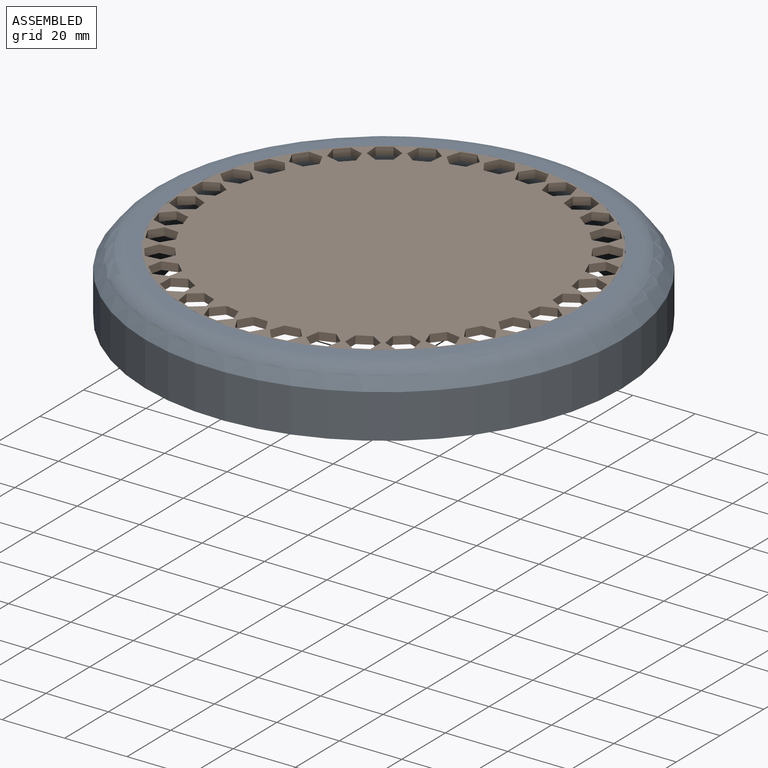
[diagram: assembled view]
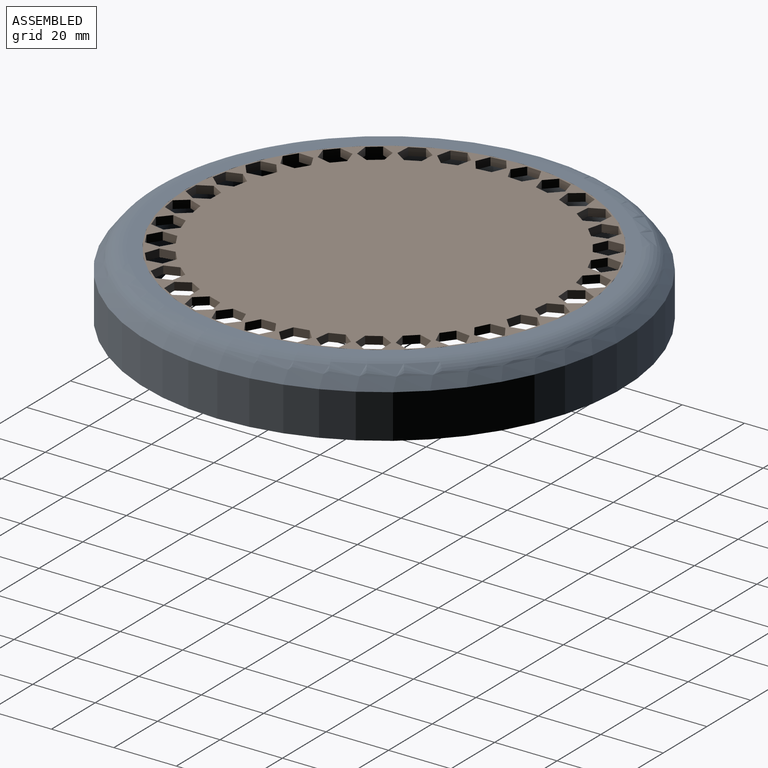
[diagram: assembled view, second angle]
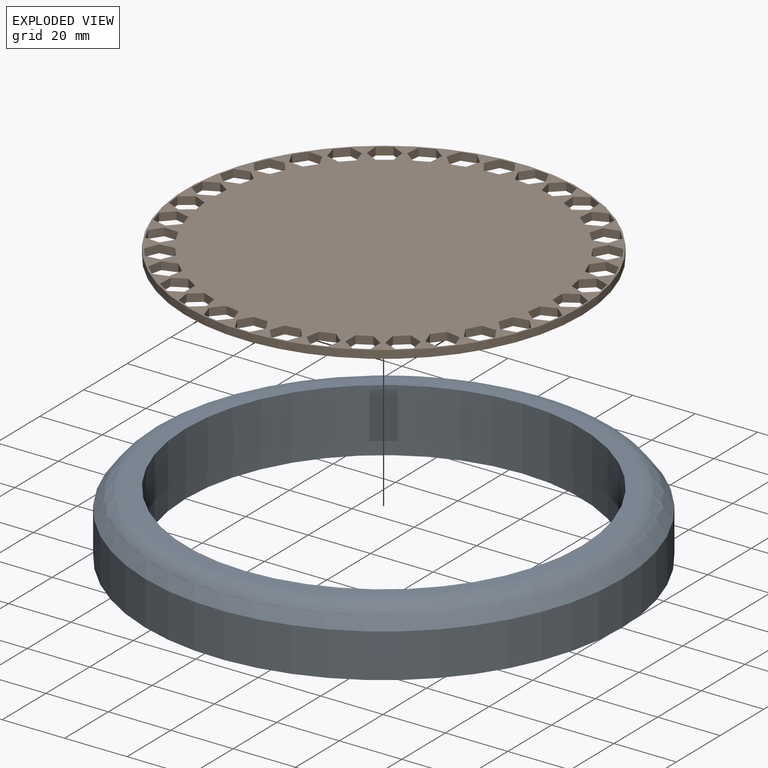
[diagram: exploded view]
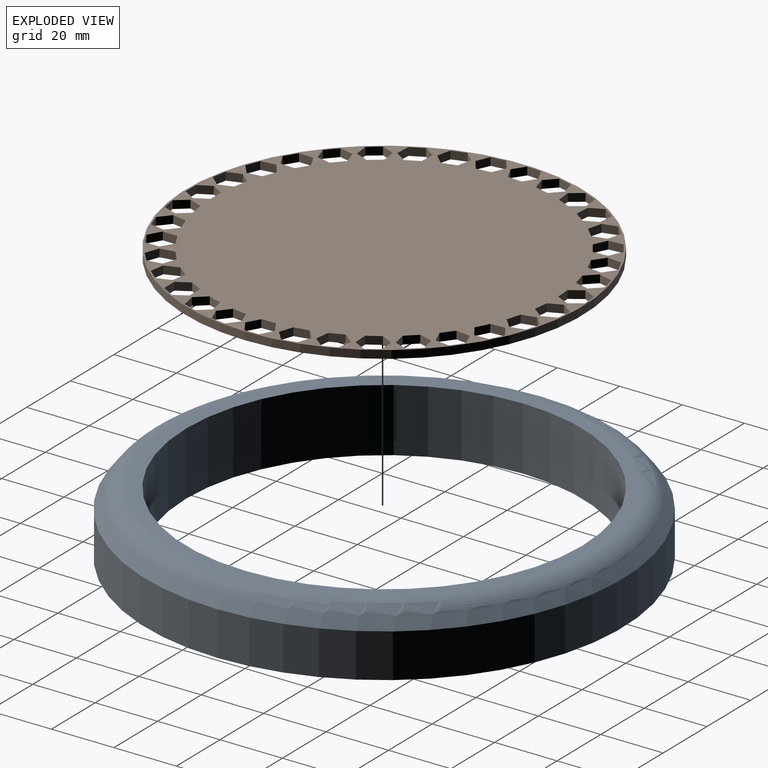
[diagram: exploded view, second angle]
ASSEMBLY  parts=2 mates=3
PART A: 6 faces, bbox 163.1x163.1x20.3 mm
  f0: plane 152.63x152.63mm, normal (0,0,-1), area 5629.1mm2, adj f1,f4
  f1: cylinder r=76.32mm len=152.63mm, axis (0,0,1), area 6754mm2, adj f0,f2
  f2: cone r=76.32mm half-angle=37.9deg, axis (0,0,-1), area 1966.7mm2, adj f1,f5
  f3: plane 135.48x135.48mm, normal (0,0,1), area 1748mm2, adj f4,f5
  f4: cylinder r=63.5mm len=127mm, axis (0,0,1), area 8107.3mm2, adj f0,f3
  f5: torus R=67.74mm, axis (0,0,-1), area 3091.4mm2, adj f2,f3
PART B: 213 faces, bbox 127x127x2.5 mm
  f0: cylinder r=63.5mm len=127mm, axis (0,0,-1), area 1013.4mm2, adj f1,f2
  f1: plane 127x127mm, normal (0,0,1), area 10668.9mm2, adj f0,f3,f4,f5,f6,f7,f8,f9
  f2: plane 127x127mm, normal (0,0,-1), area 10668.9mm2, adj f0,f3,f4,f5,f6,f7,f8,f9
  f3: plane 4.27x2.54mm, normal (-0.91,0.41,0), area 11.9mm2, adj f1,f2,f4,f8
  f4: plane 3.81x2.73mm, normal (-0.81,-0.58,0), area 11.9mm2, adj f1,f2,f3,f5
  f5: plane 4.67x2.54mm, normal (0.1,-1,0), area 11.9mm2, adj f1,f2,f4,f6
  f6: plane 4.27x2.54mm, normal (0.91,-0.41,0), area 11.9mm2, adj f1,f2,f5,f7
  f7: plane 3.81x2.73mm, normal (0.81,0.58,0), area 11.9mm2, adj f1,f2,f6,f8
  f8: plane 4.67x2.54mm, normal (-0.1,1,0), area 11.9mm2, adj f1,f2,f3,f7
  f9: plane 3.32x3.31mm, normal (-0.71,0.71,0), area 11.9mm2, adj f1,f2,f10,f14
  f10: plane 4.53x2.54mm, normal (-0.97,-0.26,0), area 11.9mm2, adj f1,f2,f9,f11
  f11: plane 4.53x2.54mm, normal (-0.26,-0.97,0), area 11.9mm2, adj f1,f2,f10,f12
  f12: plane 3.32x3.31mm, normal (0.71,-0.71,0), area 11.9mm2, adj f1,f2,f11,f13
  f13: plane 4.53x2.54mm, normal (0.97,0.26,0), area 11.9mm2, adj f1,f2,f12,f14
  f14: plane 4.53x2.54mm, normal (0.26,0.97,0), area 11.9mm2, adj f1,f2,f9,f13
  f15: plane 3.86x2.67mm, normal (-0.82,0.57,0), area 11.9mm2, adj f1,f2,f16,f20
  f16: plane 4.24x2.54mm, normal (-0.9,-0.43,0), area 11.9mm2, adj f1,f2,f15,f17
  f17: plane 4.67x2.54mm, normal (-0.08,-1,0), area 11.9mm2, adj f1,f2,f16,f18
  f18: plane 3.86x2.67mm, normal (0.82,-0.57,0), area 11.9mm2, adj f1,f2,f17,f19
  f19: plane 4.24x2.54mm, normal (0.9,0.43,0), area 11.9mm2, adj f1,f2,f18,f20
  f20: plane 4.67x2.54mm, normal (0.08,1,0), area 11.9mm2, adj f1,f2,f15,f19
  f21: plane 4.55x2.54mm, normal (-0.97,0.24,0), area 11.9mm2, adj f1,f2,f22,f26
  f22: plane 3.37x3.26mm, normal (-0.7,-0.72,0), area 11.9mm2, adj f1,f2,f21,f23
  f23: plane 4.51x2.54mm, normal (0.27,-0.96,0), area 11.9mm2, adj f1,f2,f22,f24
  f24: plane 4.55x2.54mm, normal (0.97,-0.24,0), area 11.9mm2, adj f1,f2,f23,f25
  f25: plane 3.37x3.26mm, normal (0.7,0.72,0), area 11.9mm2, adj f1,f2,f24,f26
  f26: plane 4.51x2.54mm, normal (-0.27,0.96,0), area 11.9mm2, adj f1,f2,f21,f25
  f27: plane 4.68x2.54mm, normal (-1,0.07,0), area 11.9mm2, adj f1,f2,f28,f32
  f28: plane 3.9x2.61mm, normal (-0.56,-0.83,0), area 11.9mm2, adj f1,f2,f27,f29
  f29: plane 4.21x2.54mm, normal (0.44,-0.9,0), area 11.9mm2, adj f1,f2,f28,f30
  f30: plane 4.68x2.54mm, normal (1,-0.07,0), area 11.9mm2, adj f1,f2,f29,f31
  f31: plane 3.9x2.61mm, normal (0.56,0.83,0), area 11.9mm2, adj f1,f2,f30,f32
  f32: plane 4.21x2.54mm, normal (-0.44,0.9,0), area 11.9mm2, adj f1,f2,f27,f31
  f33: plane 4.66x2.54mm, normal (-0.99,-0.11,0), area 11.9mm2, adj f1,f2,f34,f38
  f34: plane 4.3x2.54mm, normal (-0.4,-0.92,0), area 11.9mm2, adj f1,f2,f33,f35
  f35: plane 3.77x2.79mm, normal (0.59,-0.8,0), area 11.9mm2, adj f1,f2,f34,f36
  f36: plane 4.66x2.54mm, normal (0.99,0.11,0), area 11.9mm2, adj f1,f2,f35,f37
  f37: plane 4.3x2.54mm, normal (0.4,0.92,0), area 11.9mm2, adj f1,f2,f36,f38
  f38: plane 3.77x2.79mm, normal (-0.59,0.8,0), area 11.9mm2, adj f1,f2,f33,f37
  f39: plane 4.49x2.54mm, normal (-0.96,-0.29,0), area 11.9mm2, adj f1,f2,f40,f44
  f40: plane 4.56x2.54mm, normal (-0.23,-0.97,0), area 11.9mm2, adj f1,f2,f39,f41
  f41: plane 3.42x3.21mm, normal (0.73,-0.68,0), area 11.9mm2, adj f1,f2,f40,f42
  f42: plane 4.49x2.54mm, normal (0.96,0.29,0), area 11.9mm2, adj f1,f2,f41,f43
  f43: plane 4.56x2.54mm, normal (0.23,0.97,0), area 11.9mm2, adj f1,f2,f42,f44
  f44: plane 3.42x3.21mm, normal (-0.73,0.68,0), area 11.9mm2, adj f1,f2,f39,f43
  f45: plane 3.46x3.16mm, normal (-0.67,-0.74,0), area 11.9mm2, adj f1,f2,f46,f50
  f46: plane 4.47x2.54mm, normal (0.3,-0.95,0), area 11.9mm2, adj f1,f2,f45,f47
  f47: plane 4.58x2.54mm, normal (0.98,-0.21,0), area 11.9mm2, adj f1,f2,f46,f48
  f48: plane 3.46x3.16mm, normal (0.67,0.74,0), area 11.9mm2, adj f1,f2,f47,f49
  f49: plane 4.47x2.54mm, normal (-0.3,0.95,0), area 11.9mm2, adj f1,f2,f48,f50
  f50: plane 4.58x2.54mm, normal (-0.98,0.21,0), area 11.9mm2, adj f1,f2,f45,f49
  f51: plane 3.97x2.54mm, normal (-0.53,-0.85,0), area 11.9mm2, adj f1,f2,f52,f56
  f52: plane 4.14x2.54mm, normal (0.47,-0.88,0), area 11.9mm2, adj f1,f2,f51,f53
  f53: plane 4.69x2.54mm, normal (1,-0.04,0), area 11.9mm2, adj f1,f2,f52,f54
  f54: plane 3.97x2.54mm, normal (0.53,0.85,0), area 11.9mm2, adj f1,f2,f53,f55
  f55: plane 4.14x2.54mm, normal (-0.47,0.88,0), area 11.9mm2, adj f1,f2,f54,f56
  f56: plane 4.69x2.54mm, normal (-1,0.04,0), area 11.9mm2, adj f1,f2,f51,f55
  f57: plane 3.73x2.85mm, normal (-0.79,-0.61,0), area 11.9mm2, adj f1,f2,f58,f62
  f58: plane 4.65x2.54mm, normal (0.13,-0.99,0), area 11.9mm2, adj f1,f2,f57,f59
  f59: plane 4.33x2.54mm, normal (0.92,-0.38,0), area 11.9mm2, adj f1,f2,f58,f60
  f60: plane 3.73x2.85mm, normal (0.79,0.61,0), area 11.9mm2, adj f1,f2,f59,f61
  f61: plane 4.65x2.54mm, normal (-0.13,0.99,0), area 11.9mm2, adj f1,f2,f60,f62
  f62: plane 4.33x2.54mm, normal (-0.92,0.38,0), area 11.9mm2, adj f1,f2,f57,f61
  f63: plane 4.17x2.54mm, normal (-0.89,-0.46,0), area 11.9mm2, adj f1,f2,f64,f68
  f64: plane 4.68x2.54mm, normal (-0.05,-1,0), area 11.9mm2, adj f1,f2,f63,f65
  f65: plane 3.94x2.55mm, normal (0.84,-0.54,0), area 11.9mm2, adj f1,f2,f64,f66
  f66: plane 4.17x2.54mm, normal (0.89,0.46,0), area 11.9mm2, adj f1,f2,f65,f67
  f67: plane 4.68x2.54mm, normal (0.05,1,0), area 11.9mm2, adj f1,f2,f66,f68
  f68: plane 3.94x2.55mm, normal (-0.84,0.54,0), area 11.9mm2, adj f1,f2,f63,f67
  f69: plane 4.35x2.54mm, normal (-0.37,-0.93,0), area 11.9mm2, adj f1,f2,f70,f74
  f70: plane 3.68x2.9mm, normal (0.62,-0.79,0), area 11.9mm2, adj f1,f2,f69,f71
  f71: plane 4.64x2.54mm, normal (0.99,0.14,0), area 11.9mm2, adj f1,f2,f70,f72
  f72: plane 4.35x2.54mm, normal (0.37,0.93,0), area 11.9mm2, adj f1,f2,f71,f73
  f73: plane 3.68x2.9mm, normal (-0.62,0.79,0), area 11.9mm2, adj f1,f2,f72,f74
  f74: plane 4.64x2.54mm, normal (-0.99,-0.14,0), area 11.9mm2, adj f1,f2,f69,f73
  f75: plane 4.59x2.54mm, normal (-0.2,-0.98,0), area 11.9mm2, adj f1,f2,f76,f80
  f76: plane 3.51x3.11mm, normal (0.75,-0.66,0), area 11.9mm2, adj f1,f2,f75,f77
  f77: plane 4.45x2.54mm, normal (0.95,0.32,0), area 11.9mm2, adj f1,f2,f76,f78
  f78: plane 4.59x2.54mm, normal (0.2,0.98,0), area 11.9mm2, adj f1,f2,f77,f79
  f79: plane 3.51x3.11mm, normal (-0.75,0.66,0), area 11.9mm2, adj f1,f2,f78,f80
  f80: plane 4.45x2.54mm, normal (-0.95,-0.32,0), area 11.9mm2, adj f1,f2,f75,f79
  f81: plane 4.69x2.54mm, normal (-0.02,-1,0), area 11.9mm2, adj f1,f2,f82,f86
  f82: plane 4.01x2.54mm, normal (0.86,-0.52,0), area 11.9mm2, adj f1,f2,f81,f83
  f83: plane 4.11x2.54mm, normal (0.88,0.48,0), area 11.9mm2, adj f1,f2,f82,f84
  f84: plane 4.69x2.54mm, normal (0.02,1,0), area 11.9mm2, adj f1,f2,f83,f85
  f85: plane 4.01x2.54mm, normal (-0.86,0.52,0), area 11.9mm2, adj f1,f2,f84,f86
  f86: plane 4.11x2.54mm, normal (-0.88,-0.48,0), area 11.9mm2, adj f1,f2,f81,f85
  f87: plane 4.63x2.54mm, normal (0.16,-0.99,0), area 11.9mm2, adj f1,f2,f88,f92
  f88: plane 4.38x2.54mm, normal (0.93,-0.36,0), area 11.9mm2, adj f1,f2,f87,f89
  f89: plane 3.64x2.96mm, normal (0.78,0.63,0), area 11.9mm2, adj f1,f2,f88,f90
  f90: plane 4.63x2.54mm, normal (-0.16,0.99,0), area 11.9mm2, adj f1,f2,f89,f91
  f91: plane 4.38x2.54mm, normal (-0.93,0.36,0), area 11.9mm2, adj f1,f2,f90,f92
  f92: plane 3.64x2.96mm, normal (-0.78,-0.63,0), area 11.9mm2, adj f1,f2,f87,f91
  f93: plane 4.42x2.54mm, normal (0.33,-0.94,0), area 11.9mm2, adj f1,f2,f94,f98
  f94: plane 4.61x2.54mm, normal (0.98,-0.18,0), area 11.9mm2, adj f1,f2,f93,f95
  f95: plane 3.56x3.05mm, normal (0.65,0.76,0), area 11.9mm2, adj f1,f2,f94,f96
  f96: plane 4.42x2.54mm, normal (-0.33,0.94,0), area 11.9mm2, adj f1,f2,f95,f97
  f97: plane 4.61x2.54mm, normal (-0.98,0.18,0), area 11.9mm2, adj f1,f2,f96,f98
  f98: plane 3.56x3.05mm, normal (-0.65,-0.76,0), area 11.9mm2, adj f1,f2,f93,f97
  f99: plane 4.07x2.54mm, normal (0.49,-0.87,0), area 11.9mm2, adj f1,f2,f100,f104
  f100: plane 4.69x2.54mm, normal (1,-0.01,0), area 11.9mm2, adj f1,f2,f99,f101
  f101: plane 4.05x2.54mm, normal (0.51,0.86,0), area 11.9mm2, adj f1,f2,f100,f102
  f102: plane 4.07x2.54mm, normal (-0.49,0.87,0), area 11.9mm2, adj f1,f2,f101,f103
  f103: plane 4.69x2.54mm, normal (-1,0.01,0), area 11.9mm2, adj f1,f2,f102,f104
  f104: plane 4.05x2.54mm, normal (-0.51,-0.86,0), area 11.9mm2, adj f1,f2,f99,f103
  f105: plane 3.6x3mm, normal (0.77,-0.64,0), area 11.9mm2, adj f1,f2,f106,f110
  f106: plane 4.4x2.54mm, normal (0.94,0.35,0), area 11.9mm2, adj f1,f2,f105,f107
  f107: plane 4.62x2.54mm, normal (0.17,0.99,0), area 11.9mm2, adj f1,f2,f106,f108
  f108: plane 3.6x3mm, normal (-0.77,0.64,0), area 11.9mm2, adj f1,f2,f107,f109
  f109: plane 4.4x2.54mm, normal (-0.94,-0.35,0), area 11.9mm2, adj f1,f2,f108,f110
  f110: plane 4.62x2.54mm, normal (-0.17,-0.99,0), area 11.9mm2, adj f1,f2,f105,f109
  f111: plane 3.6x3.01mm, normal (0.64,-0.77,0), area 11.9mm2, adj f1,f2,f112,f116
  f112: plane 4.62x2.54mm, normal (0.99,0.17,0), area 11.9mm2, adj f1,f2,f111,f113
  f113: plane 4.4x2.54mm, normal (0.34,0.94,0), area 11.9mm2, adj f1,f2,f112,f114
  f114: plane 3.6x3.01mm, normal (-0.64,0.77,0), area 11.9mm2, adj f1,f2,f113,f115
  f115: plane 4.62x2.54mm, normal (-0.99,-0.17,0), area 11.9mm2, adj f1,f2,f114,f116
  f116: plane 4.4x2.54mm, normal (-0.34,-0.94,0), area 11.9mm2, adj f1,f2,f111,f115
  f117: plane 3.85x2.68mm, normal (-0.57,0.82,0), area 11.9mm2, adj f1,f2,f118,f122
  f118: plane 4.67x2.54mm, normal (-1,-0.08,0), area 11.9mm2, adj f1,f2,f117,f119
  f119: plane 4.24x2.54mm, normal (-0.43,-0.9,0), area 11.9mm2, adj f1,f2,f118,f120
  f120: plane 3.85x2.68mm, normal (0.57,-0.82,0), area 11.9mm2, adj f1,f2,f119,f121
  f121: plane 4.67x2.54mm, normal (1,0.08,0), area 11.9mm2, adj f1,f2,f120,f122
  f122: plane 4.24x2.54mm, normal (0.43,0.9,0), area 11.9mm2, adj f1,f2,f117,f121
  f123: plane 4.27x2.54mm, normal (-0.41,0.91,0), area 11.9mm2, adj f1,f2,f124,f128
  f124: plane 4.67x2.54mm, normal (-1,0.1,0), area 11.9mm2, adj f1,f2,f123,f125
  f125: plane 3.82x2.72mm, normal (-0.58,-0.81,0), area 11.9mm2, adj f1,f2,f124,f126
  f126: plane 4.27x2.54mm, normal (0.41,-0.91,0), area 11.9mm2, adj f1,f2,f125,f127
  f127: plane 4.67x2.54mm, normal (1,-0.1,0), area 11.9mm2, adj f1,f2,f126,f128
  f128: plane 3.82x2.72mm, normal (0.58,0.81,0), area 11.9mm2, adj f1,f2,f123,f127
  f129: plane 4.54x2.54mm, normal (-0.25,0.97,0), area 11.9mm2, adj f1,f2,f130,f134
  f130: plane 4.51x2.54mm, normal (-0.96,0.27,0), area 11.9mm2, adj f1,f2,f129,f131
  f131: plane 3.36x3.27mm, normal (-0.72,-0.7,0), area 11.9mm2, adj f1,f2,f130,f132
  f132: plane 4.54x2.54mm, normal (0.25,-0.97,0), area 11.9mm2, adj f1,f2,f131,f133
  f133: plane 4.51x2.54mm, normal (0.96,-0.27,0), area 11.9mm2, adj f1,f2,f132,f134
  f134: plane 3.36x3.27mm, normal (0.72,0.7,0), area 11.9mm2, adj f1,f2,f129,f133
  f135: plane 4.68x2.54mm, normal (-0.07,1,0), area 11.9mm2, adj f1,f2,f136,f140
  f136: plane 4.21x2.54mm, normal (-0.9,0.44,0), area 11.9mm2, adj f1,f2,f135,f137
  f137: plane 3.89x2.62mm, normal (-0.83,-0.56,0), area 11.9mm2, adj f1,f2,f136,f138
  f138: plane 4.68x2.54mm, normal (0.07,-1,0), area 11.9mm2, adj f1,f2,f137,f139
  f139: plane 4.21x2.54mm, normal (0.9,-0.44,0), area 11.9mm2, adj f1,f2,f138,f140
  f140: plane 3.89x2.62mm, normal (0.83,0.56,0), area 11.9mm2, adj f1,f2,f135,f139
  f141: plane 4.66x2.54mm, normal (0.11,0.99,0), area 11.9mm2, adj f1,f2,f142,f146
  f142: plane 3.78x2.78mm, normal (-0.81,0.59,0), area 11.9mm2, adj f1,f2,f141,f143
  f143: plane 4.29x2.54mm, normal (-0.92,-0.4,0), area 11.9mm2, adj f1,f2,f142,f144
  f144: plane 4.66x2.54mm, normal (-0.11,-0.99,0), area 11.9mm2, adj f1,f2,f143,f145
  f145: plane 3.78x2.78mm, normal (0.81,-0.59,0), area 11.9mm2, adj f1,f2,f144,f146
  f146: plane 4.29x2.54mm, normal (0.92,0.4,0), area 11.9mm2, adj f1,f2,f141,f145
  f147: plane 4.49x2.54mm, normal (0.29,0.96,0), area 11.9mm2, adj f1,f2,f148,f152
  f148: plane 3.41x3.22mm, normal (-0.69,0.73,0), area 11.9mm2, adj f1,f2,f147,f149
  f149: plane 4.56x2.54mm, normal (-0.97,-0.23,0), area 11.9mm2, adj f1,f2,f148,f150
  f150: plane 4.49x2.54mm, normal (-0.29,-0.96,0), area 11.9mm2, adj f1,f2,f149,f151
  f151: plane 3.41x3.22mm, normal (0.69,-0.73,0), area 11.9mm2, adj f1,f2,f150,f152
  f152: plane 4.56x2.54mm, normal (0.97,0.23,0), area 11.9mm2, adj f1,f2,f147,f151
  f153: plane 4.18x2.54mm, normal (0.45,0.89,0), area 11.9mm2, adj f1,f2,f154,f158
  f154: plane 3.93x2.56mm, normal (-0.55,0.84,0), area 11.9mm2, adj f1,f2,f153,f155
  f155: plane 4.68x2.54mm, normal (-1,-0.05,0), area 11.9mm2, adj f1,f2,f154,f156
  f156: plane 4.18x2.54mm, normal (-0.45,-0.89,0), area 11.9mm2, adj f1,f2,f155,f157
  f157: plane 3.93x2.56mm, normal (0.55,-0.84,0), area 11.9mm2, adj f1,f2,f156,f158
  f158: plane 4.68x2.54mm, normal (1,0.05,0), area 11.9mm2, adj f1,f2,f153,f157
  f159: plane 3.73x2.84mm, normal (0.6,0.8,0), area 11.9mm2, adj f1,f2,f160,f164
  f160: plane 4.32x2.54mm, normal (-0.39,0.92,0), area 11.9mm2, adj f1,f2,f159,f161
  f161: plane 4.65x2.54mm, normal (-0.99,0.13,0), area 11.9mm2, adj f1,f2,f160,f162
  f162: plane 3.73x2.84mm, normal (-0.6,-0.8,0), area 11.9mm2, adj f1,f2,f161,f163
  f163: plane 4.32x2.54mm, normal (0.39,-0.92,0), area 11.9mm2, adj f1,f2,f162,f164
  f164: plane 4.65x2.54mm, normal (0.99,-0.13,0), area 11.9mm2, adj f1,f2,f159,f163
  f165: plane 3.97x2.54mm, normal (0.85,0.53,0), area 11.9mm2, adj f1,f2,f166,f170
  f166: plane 4.69x2.54mm, normal (-0.04,1,0), area 11.9mm2, adj f1,f2,f165,f167
  f167: plane 4.15x2.54mm, normal (-0.88,0.47,0), area 11.9mm2, adj f1,f2,f166,f168
  f168: plane 3.97x2.54mm, normal (-0.85,-0.53,0), area 11.9mm2, adj f1,f2,f167,f169
  f169: plane 4.69x2.54mm, normal (0.04,-1,0), area 11.9mm2, adj f1,f2,f168,f170
  f170: plane 4.15x2.54mm, normal (0.88,-0.47,0), area 11.9mm2, adj f1,f2,f165,f169
  f171: plane 3.46x3.17mm, normal (0.74,0.68,0), area 11.9mm2, adj f1,f2,f172,f176
  f172: plane 4.58x2.54mm, normal (-0.22,0.98,0), area 11.9mm2, adj f1,f2,f171,f173
  f173: plane 4.47x2.54mm, normal (-0.95,0.3,0), area 11.9mm2, adj f1,f2,f172,f174
  f174: plane 3.46x3.17mm, normal (-0.74,-0.68,0), area 11.9mm2, adj f1,f2,f173,f175
  f175: plane 4.58x2.54mm, normal (0.22,-0.98,0), area 11.9mm2, adj f1,f2,f174,f176
  f176: plane 4.47x2.54mm, normal (0.95,-0.3,0), area 11.9mm2, adj f1,f2,f171,f175
  f177: plane 4.35x2.54mm, normal (0.93,0.37,0), area 11.9mm2, adj f1,f2,f178,f182
  f178: plane 4.64x2.54mm, normal (0.14,0.99,0), area 11.9mm2, adj f1,f2,f177,f179
  f179: plane 3.69x2.89mm, normal (-0.79,0.62,0), area 11.9mm2, adj f1,f2,f178,f180
  f180: plane 4.35x2.54mm, normal (-0.93,-0.37,0), area 11.9mm2, adj f1,f2,f179,f181
  f181: plane 4.64x2.54mm, normal (-0.14,-0.99,0), area 11.9mm2, adj f1,f2,f180,f182
  f182: plane 3.69x2.89mm, normal (0.79,-0.62,0), area 11.9mm2, adj f1,f2,f177,f181
  f183: plane 4.59x2.54mm, normal (0.98,0.2,0), area 11.9mm2, adj f1,f2,f184,f188
  f184: plane 4.45x2.54mm, normal (0.31,0.95,0), area 11.9mm2, adj f1,f2,f183,f185
  f185: plane 3.5x3.12mm, normal (-0.66,0.75,0), area 11.9mm2, adj f1,f2,f184,f186
  f186: plane 4.59x2.54mm, normal (-0.98,-0.2,0), area 11.9mm2, adj f1,f2,f185,f187
  f187: plane 4.45x2.54mm, normal (-0.31,-0.95,0), area 11.9mm2, adj f1,f2,f186,f188
  f188: plane 3.5x3.12mm, normal (0.66,-0.75,0), area 11.9mm2, adj f1,f2,f183,f187
  f189: plane 4.69x2.54mm, normal (1,0.02,0), area 11.9mm2, adj f1,f2,f190,f194
  f190: plane 4.11x2.54mm, normal (0.48,0.88,0), area 11.9mm2, adj f1,f2,f189,f191
  f191: plane 4x2.54mm, normal (-0.52,0.85,0), area 11.9mm2, adj f1,f2,f190,f192
  f192: plane 4.69x2.54mm, normal (-1,-0.02,0), area 11.9mm2, adj f1,f2,f191,f193
  f193: plane 4.11x2.54mm, normal (-0.48,-0.88,0), area 11.9mm2, adj f1,f2,f192,f194
  f194: plane 4x2.54mm, normal (0.52,-0.85,0), area 11.9mm2, adj f1,f2,f189,f193
  f195: plane 4.63x2.54mm, normal (0.99,-0.16,0), area 11.9mm2, adj f1,f2,f196,f200
  f196: plane 3.65x2.95mm, normal (0.63,0.78,0), area 11.9mm2, adj f1,f2,f195,f197
  f197: plane 4.37x2.54mm, normal (-0.36,0.93,0), area 11.9mm2, adj f1,f2,f196,f198
  f198: plane 4.63x2.54mm, normal (-0.99,0.16,0), area 11.9mm2, adj f1,f2,f197,f199
  f199: plane 3.65x2.95mm, normal (-0.63,-0.78,0), area 11.9mm2, adj f1,f2,f198,f200
  f200: plane 4.37x2.54mm, normal (0.36,-0.93,0), area 11.9mm2, adj f1,f2,f195,f199
  f201: plane 4.43x2.54mm, normal (0.94,-0.33,0), area 11.9mm2, adj f1,f2,f202,f206
  f202: plane 3.55x3.06mm, normal (0.76,0.65,0), area 11.9mm2, adj f1,f2,f201,f203
  f203: plane 4.61x2.54mm, normal (-0.19,0.98,0), area 11.9mm2, adj f1,f2,f202,f204
  f204: plane 4.43x2.54mm, normal (-0.94,0.33,0), area 11.9mm2, adj f1,f2,f203,f205
  f205: plane 3.55x3.06mm, normal (-0.76,-0.65,0), area 11.9mm2, adj f1,f2,f204,f206
  f206: plane 4.61x2.54mm, normal (0.19,-0.98,0), area 11.9mm2, adj f1,f2,f201,f205
  f207: plane 4.08x2.54mm, normal (0.87,-0.49,0), area 11.9mm2, adj f1,f2,f208,f212
  f208: plane 4.04x2.54mm, normal (0.86,0.51,0), area 11.9mm2, adj f1,f2,f207,f209
  f209: plane 4.69x2.54mm, normal (-0.01,1,0), area 11.9mm2, adj f1,f2,f208,f210
  f210: plane 4.08x2.54mm, normal (-0.87,0.49,0), area 11.9mm2, adj f1,f2,f209,f211
  f211: plane 4.04x2.54mm, normal (-0.86,-0.51,0), area 11.9mm2, adj f1,f2,f210,f212
  f212: plane 4.69x2.54mm, normal (0.01,-1,0), area 11.9mm2, adj f1,f2,f207,f211
PLACE A t=(-31.8,-5.67,17.77)mm
PLACE B t=(-31.8,-5.67,35.55)mm
MATE revolute B.f0 <-> A.f4  axis (0,0,1) through (-31.8,-5.67,38.09)mm
MATE fastened B.f0 <-> A.f4  axis (0,0,1) through (-31.8,-5.67,38.09)mm
MATE parallel B.f0 <-> A.f4  axis (0,0,1) through (-31.8,-5.67,38.09)mm
